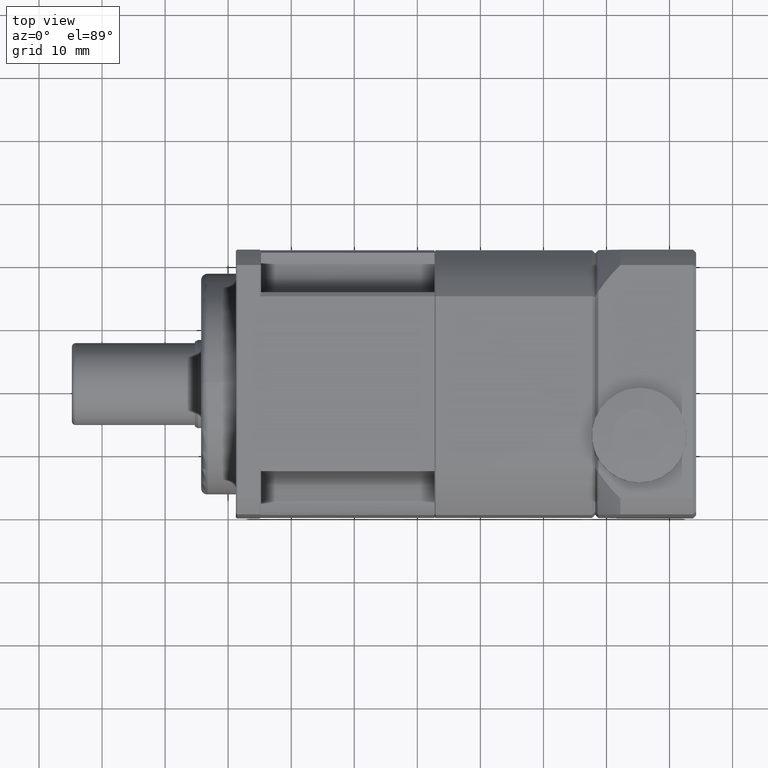
[diagram: clean part render]
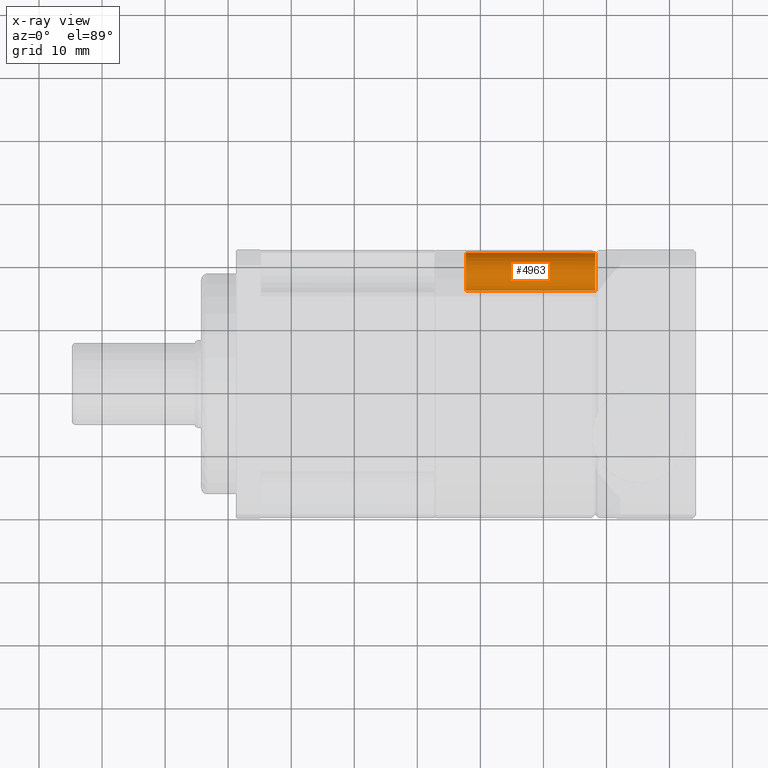
[diagram: x-ray — body ghosted, one internal face saturated and labeled with its STEP entity id]
A machine part, top view, then the same camera in x-ray: the body is ghosted and one INTERNAL B-rep face — a face not visible from any outside direction — is saturated and labeled: STEP entity #4963.
In plain terms, the highlighted cylindrical surface (bore or boss wall) has radius 3 mm, axis along (1, 0, -0).
Its self-contained STEP definition (entity closure, byte-faithful):
#16=ELLIPSE('',#5470,4.24264068711929,3.);
#921=FACE_BOUND('',#1580,.T.);
#1176=FACE_OUTER_BOUND('',#1579,.T.);
#1579=EDGE_LOOP('',(#3947));
#1580=EDGE_LOOP('',(#3948,#3949));
#1891=CIRCLE('',#5326,3.);
#1971=CIRCLE('',#5484,3.);
#2260=VERTEX_POINT('',#7928);
#2261=VERTEX_POINT('',#7929);
#2365=VERTEX_POINT('',#8384);
#2775=EDGE_CURVE('',#2260,#2261,#1891,.T.);
#2920=EDGE_CURVE('',#2261,#2260,#16,.T.);
#2935=EDGE_CURVE('',#2365,#2365,#1971,.T.);
#3947=ORIENTED_EDGE('',*,*,#2935,.F.);
#3948=ORIENTED_EDGE('',*,*,#2920,.F.);
#3949=ORIENTED_EDGE('',*,*,#2775,.F.);
#4519=CYLINDRICAL_SURFACE('',#5483,3.);
#4963=ADVANCED_FACE('',(#1176,#921),#4519,.F.);
#5326=AXIS2_PLACEMENT_3D('',#7930,#6270,#6271);
#5470=AXIS2_PLACEMENT_3D('',#8350,#6600,#6601);
#5483=AXIS2_PLACEMENT_3D('',#8383,#6634,#6635);
#5484=AXIS2_PLACEMENT_3D('',#8385,#6636,#6637);
#6270=DIRECTION('center_axis',(-1.,-3.14468195381056E-16,1.14421499454692E-15));
#6271=DIRECTION('ref_axis',(3.14468195381066E-16,-1.,8.67169898782533E-15));
#6600=DIRECTION('center_axis',(-0.707106781186546,-0.707106781186549,6.51194070181847E-15));
#6601=DIRECTION('ref_axis',(0.707106781186549,-0.707106781186546,5.32273497692034E-15));
#6634=DIRECTION('center_axis',(1.,3.14468195381056E-16,-1.14421499454692E-15));
#6635=DIRECTION('ref_axis',(3.14468195381066E-16,-1.,8.67169898782533E-15));
#6636=DIRECTION('center_axis',(1.,3.14468195381056E-16,-1.14421499454692E-15));
#6637=DIRECTION('ref_axis',(3.14468195381066E-16,-1.,8.67169898782533E-15));
#7928=CARTESIAN_POINT('',(18.2159950143863,-18.3674851319124,-17.1086202998223));
#7929=CARTESIAN_POINT('',(18.2159950143863,-18.3674851319124,-15.5952408227666));
#7930=CARTESIAN_POINT('Origin',(18.2159950143863,-21.2704871366665,-16.3519305612944));
#8350=CARTESIAN_POINT('Origin',(21.1189970191405,-21.2704871366665,-16.3519305612944));
#8383=CARTESIAN_POINT('Origin',(7.96599501438631,-21.2704871366665,-16.3519305612944));
#8384=CARTESIAN_POINT('',(-2.28400498561369,-24.2704871366665,-16.3519305612944));
#8385=CARTESIAN_POINT('Origin',(-2.28400498561369,-21.2704871366665,-16.3519305612944));